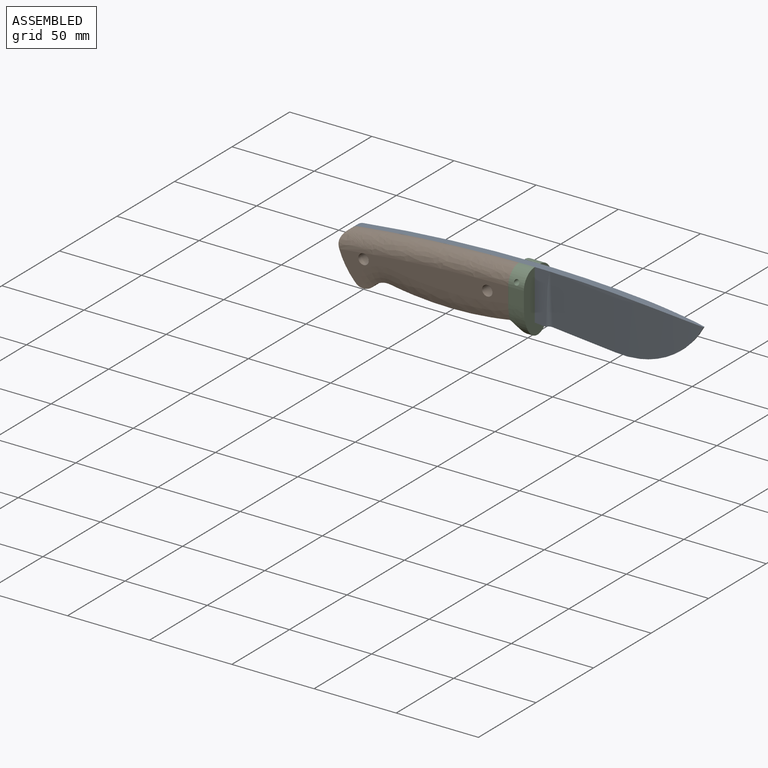
[diagram: assembled view]
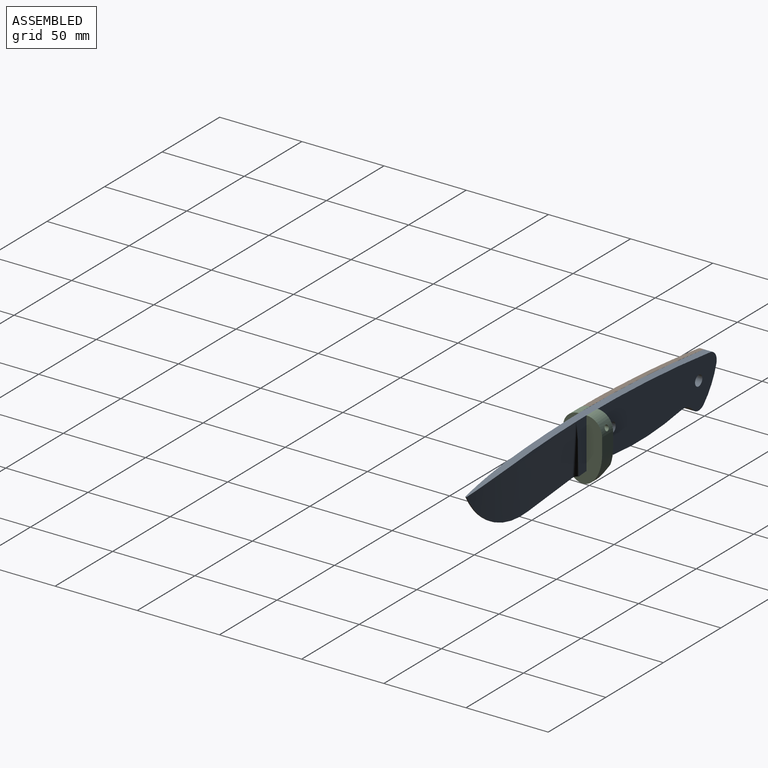
[diagram: assembled view, second angle]
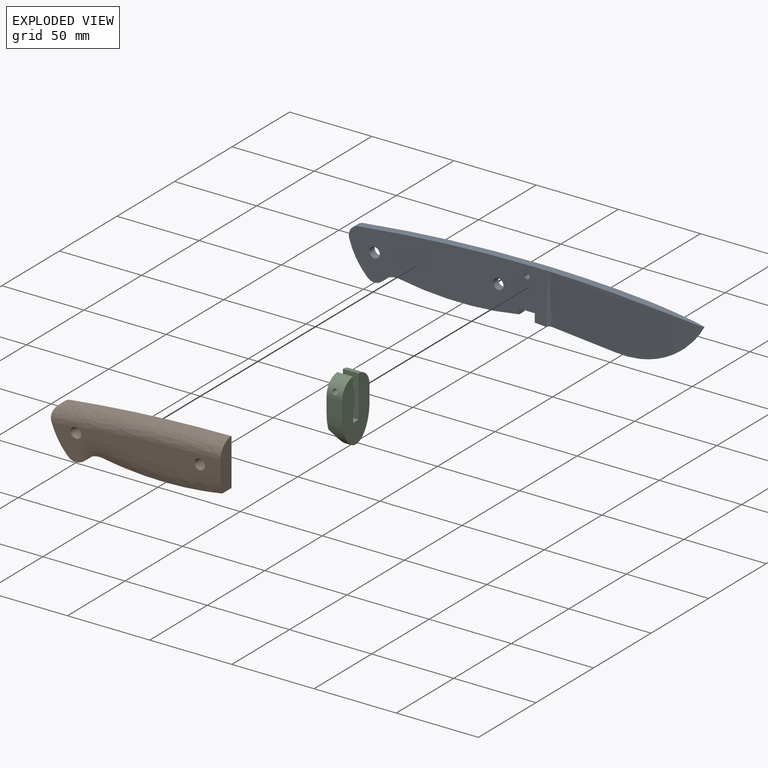
[diagram: exploded view]
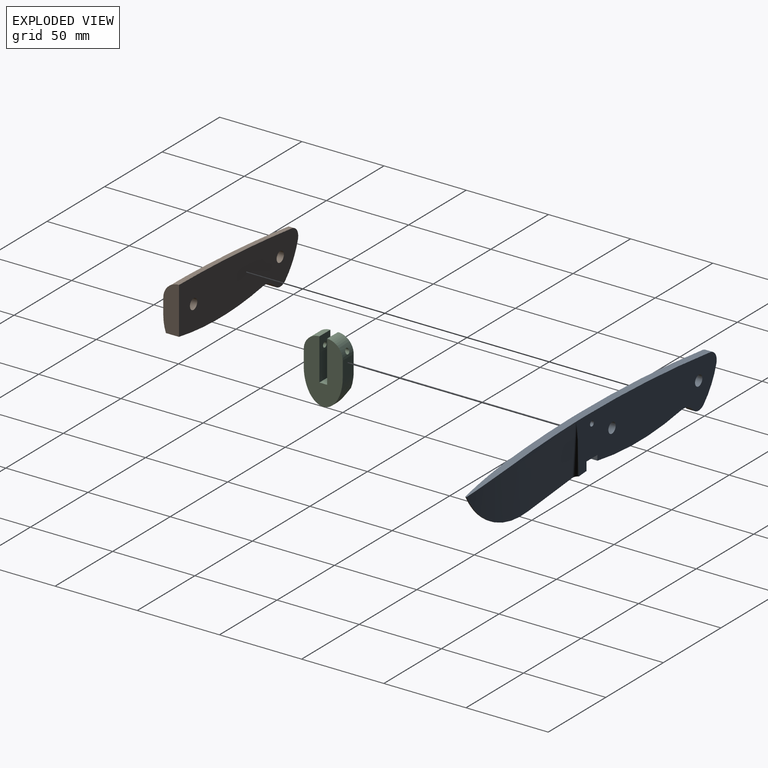
[diagram: exploded view, second angle]
ASSEMBLY  parts=3 mates=3
PART A: 25 faces, bbox 214.6x8.6x66.9 mm
  f0: cylinder r=54.27mm len=53.75mm, axis (0,1,0), area 49.1mm2, adj f2,f10,f20,f23
  f1: plane 55.69x4.06mm, normal (0,1,0), area 72.3mm2, adj f10,f22,f23,f24
  f2: cylinder r=1219.2mm len=47.63mm, axis (0,1,0), area 65.6mm2, adj f0,f3,f4,f9,f19,f21,f22,f24
  f3: bspline ~38.07x34.86mm, area 1191.5mm2, adj f2,f18,f20,f21
  f4: plane 122.68x34.61mm, normal (0,-1,0), area 3265.5mm2, adj f2,f5,f6,f7,f8,f9,f10,f11
  f5: cylinder r=11.23mm len=10.12mm, axis (0,1,0), area 52.7mm2, adj f4,f6,f17,f19
  f6: cylinder r=211.14mm len=73.03mm, axis (0,1,0), area 343mm2, adj f4,f5,f7,f19
  f7: plane 4.67x3.18mm, normal (1,0,0), area 14.8mm2, adj f4,f6,f8,f19
  f8: plane 9.53x4.67mm, normal (0,0,-1), area 44.5mm2, adj f4,f7,f9,f19
  f9: plane 5.18x4.67mm, normal (-1,0,0), area 24.2mm2, adj f2,f4,f8,f19
  f10: cylinder r=762mm len=101.37mm, axis (0,1,0), area 423.5mm2, adj f0,f1,f4,f11,f18,f19,f20,f23
  f11: cylinder r=914.4mm len=107.55mm, axis (0,1,0), area 503.8mm2, adj f4,f10,f12,f19
  f12: cylinder r=6.35mm len=8.05mm, axis (0,1,0), area 51.4mm2, adj f4,f11,f13,f19
  f13: cylinder r=41.74mm len=18.41mm, axis (0,1,0), area 101.3mm2, adj f4,f12,f17,f19
  f14: cylinder r=3.17mm len=6.35mm, axis (0,1,0), area 93.2mm2, adj f4,f19
  f15: cylinder r=1.59mm len=4.67mm, axis (0,1,0), area 46.6mm2, adj f4,f19
  f16: cylinder r=3.17mm len=6.35mm, axis (0,1,0), area 93.2mm2, adj f4,f19
  f17: cylinder r=6.35mm len=9.26mm, axis (0,1,0), area 48.5mm2, adj f4,f5,f13,f19
  f18: plane 55.69x4.06mm, normal (0,-1,0), area 72.3mm2, adj f3,f10,f20,f21
  f19: plane 122.68x34.61mm, normal (0,1,0), area 3265.5mm2, adj f2,f5,f6,f7,f8,f9,f10,f11
  f20: bspline ~66.77x53.75mm, area 1272.6mm2, adj f0,f3,f10,f18
  f21: cylinder r=3.17mm len=31.36mm, axis (0,-0.06,1), area 76.5mm2, adj f2,f3,f4,f18
  f22: bspline ~41.65x38.1mm, area 1191.5mm2, adj f1,f2,f23,f24
  f23: bspline ~59.72x53.75mm, area 1272.6mm2, adj f0,f1,f10,f22
  f24: cylinder r=3.17mm len=31.36mm, axis (0,0.06,1), area 76.5mm2, adj f1,f2,f19,f22
PART B: 14 faces, bbox 121x9.9x37.9 mm
  f0: plane 28.87x9.87mm, normal (1,0,0), area 247.8mm2, adj f2,f3,f4,f10,f11,f13
  f1: cylinder r=11.23mm len=10.12mm, axis (0,1,0), area 89.5mm2, adj f3,f9,f10,f12
  f2: plane 102.76x22.06mm, normal (0,-1,0), area 943.6mm2, adj f0,f6,f7,f8,f11,f12,f13
  f3: cylinder r=211.14mm len=73.03mm, axis (0,1,0), area 582.4mm2, adj f0,f1,f10,f13
  f4: cylinder r=914.4mm len=98.03mm, axis (0,1,0), area 95.4mm2, adj f0,f5,f10,f11
  f5: cylinder r=6.35mm len=9.28mm, axis (0,1,0), area 63mm2, adj f4,f6,f10,f11
  f6: cylinder r=41.74mm len=18.41mm, axis (0,1,0), area 206.2mm2, adj f2,f5,f9,f10,f11,f12
  f7: cylinder r=3.17mm len=9.53mm, axis (0,1,0), area 190mm2, adj f2,f10
  f8: cylinder r=3.17mm len=9.53mm, axis (0,1,0), area 190mm2, adj f2,f10
  f9: cylinder r=6.35mm len=9.48mm, axis (0,1,0), area 90.5mm2, adj f1,f6,f10,f12
  f10: plane 103.63x34.56mm, normal (0,1,0), area 2803mm2, adj f0,f1,f3,f4,f5,f6,f7,f8
  f11: bspline ~120.65x18.7mm, area 1434.1mm2, adj f0,f2,f4,f5,f6
  f12: bspline ~24.47x20.61mm, area 204.3mm2, adj f1,f2,f6,f9,f13
  f13: bspline ~74.79x12.71mm, area 694.7mm2, adj f0,f2,f3,f12
PART C: 15 faces, bbox 9.5x23.7x38.1 mm
  f0: plane 38.1x23.72mm, normal (1,0,0), area 649.2mm2, adj f2,f3,f9,f10,f11,f12,f13,f14
  f1: plane 28.53x23.72mm, normal (-1,0,0), area 510.4mm2, adj f2,f3,f4,f6,f7,f9,f10,f11
  f2: plane 9.53x9.53mm, normal (0,-1,0), area 90.7mm2, adj f0,f1,f13,f14
  f3: plane 9.53x9.53mm, normal (0,1,0), area 90.7mm2, adj f0,f1,f12,f13
  f4: cylinder r=914.4mm len=9.53mm, axis (0,1,0), area 4.6mm2, adj f1,f10,f14
  f5: cylinder r=1.59mm len=9.39mm, axis (0,1,0), area 88.8mm2, adj f10,f14
  f6: cylinder r=914.4mm len=9.53mm, axis (0,1,0), area 4.6mm2, adj f1,f11,f12
  f7: cylinder r=18.1mm len=20.55mm, axis (0,1,0), area 175.8mm2, adj f1,f13
  f8: cylinder r=1.59mm len=9.39mm, axis (0,1,0), area 88.8mm2, adj f11,f12
  f9: plane 9.53x4.67mm, normal (0,0,1), area 44.5mm2, adj f0,f1,f10,f11
  f10: plane 25.4x9.53mm, normal (0,1,0), area 233.9mm2, adj f0,f1,f4,f5,f9
  f11: plane 25.4x9.53mm, normal (0,-1,0), area 233.9mm2, adj f0,f1,f6,f8,f9
  f12: cylinder r=9.53mm len=9.53mm, axis (1,0,0), area 129.4mm2, adj f0,f1,f3,f6,f8
  f13: extruded ~23.72x19.05mm, area 333.6mm2, adj f0,f1,f2,f3,f7
  f14: cylinder r=9.53mm len=9.53mm, axis (1,0,0), area 129.4mm2, adj f0,f1,f2,f4,f5
PLACE A t=(-0.03,2.34,0.02)mm
PLACE B t=(-55.47,-2.34,0.32)mm
PLACE C t=(1.1,11.86,-1.4)mm
MATE cylindrical A.f14 <-> B.f7  axis (0,-1,0) through (-16.36,-2.34,2.31)mm
MATE cylindrical C.f5 <-> A.f15  axis (0,1,0) through (1.1,-2.34,11.3)mm
MATE cylindrical B.f7 <-> A.f14  axis (0,1,0) through (-16.36,-2.34,2.31)mm
